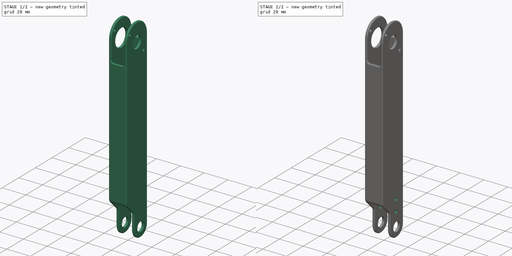
[diagram: build sequence overview — one tinted view per stage of 2, left to right]
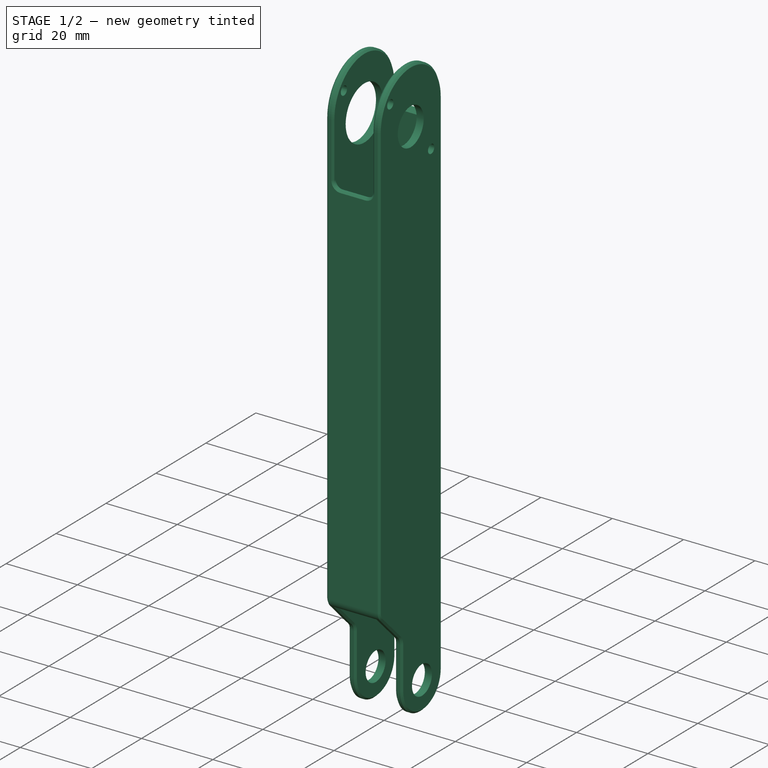
[diagram: stage 1 of 2 — iso view after this stage's code; geometry added in this stage tinted green]
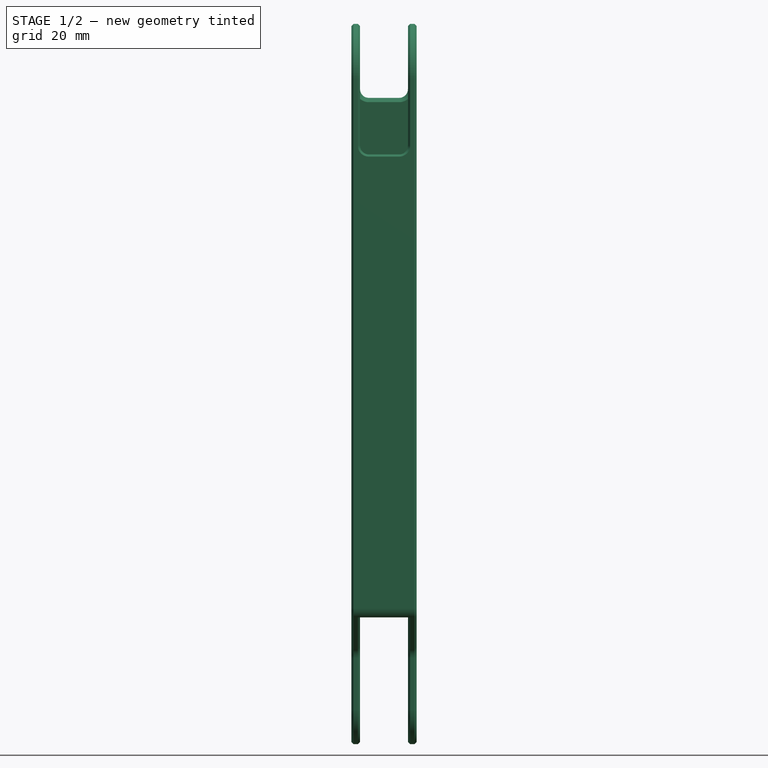
[diagram: stage 1 of 2 — front view after this stage's code; geometry added in this stage tinted green]
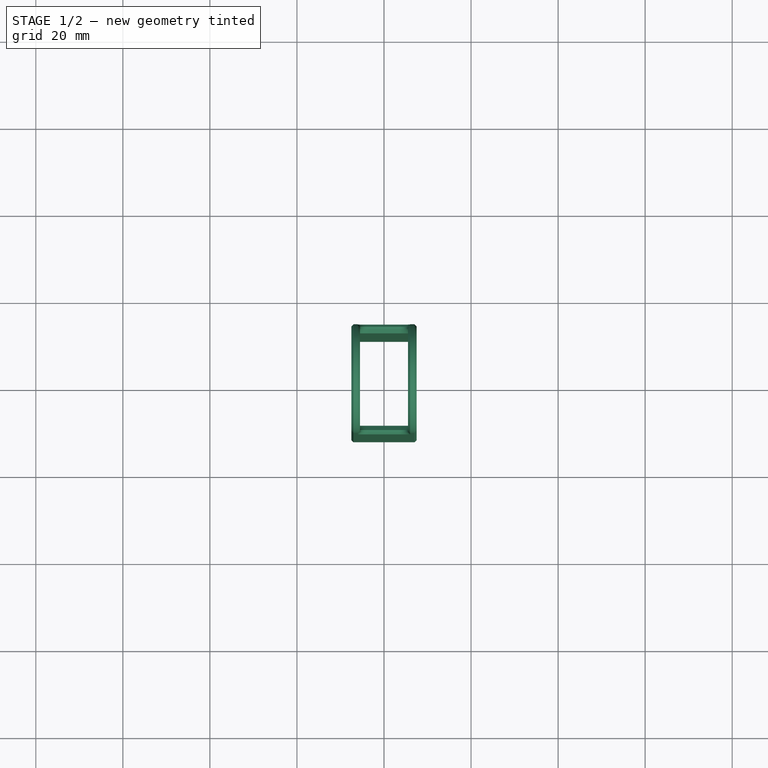
[diagram: stage 1 of 2 — top view after this stage's code; geometry added in this stage tinted green]
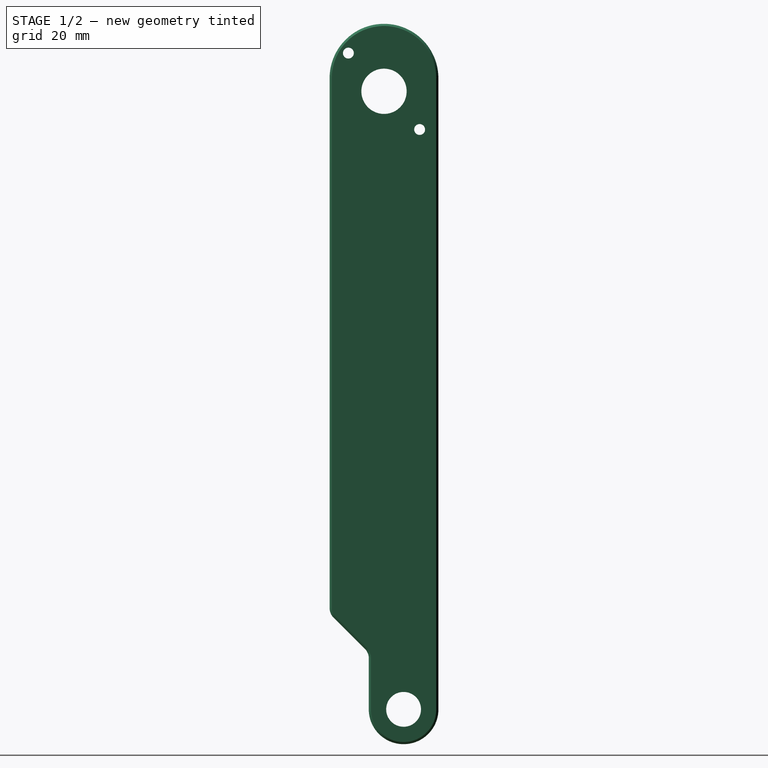
[diagram: stage 1 of 2 — right view after this stage's code; geometry added in this stage tinted green]
FCSTD DOCUMENT  (FreeCAD 0.18R16146 (Git))
Label: ResizedCenterArmSegment
License: All rights reserved
LicenseURL: http://en.wikipedia.org/wiki/All_rights_reserved
objects: Part::Feature×3, Sketcher::SketchObject×2, PartDesign::Pocket×2, PartDesign::FeatureBase×1, PartDesign::Chamfer×1, App::Part×1, PartDesign::Body×1
note: 12 computed .brp shape members not serialized (recipe doc carries the construction recipe); baked Part::Feature solids carry a one-line shape summary decoded from their .brp

FEATURE [Part::Feature] Part__Feature012  label="<unrecoverable-encoding: 9 bytes d7b7b1dbb9d8bdd8b1>"
  Placement = pos=(87.482,183.617,-119.904) rot=(0.506093,-0.698383,0.506093;1.92231rad)
  shape: bbox 62.44 x 159.7 x 15 mm, 100 faces (baked)
FEATURE [PartDesign::FeatureBase] BaseFeature
  BaseFeature = -> Part__Feature012
FEATURE [Sketcher::SketchObject] Sketch
  ExternalGeometry = -> [BaseFeature]
  MapMode = 5
  Placement = pos=(0,12.5,0) rot=(0,0.707107,0.707107;3.14159rad)
  Support = -> [BaseFeature]
  sketch-geometry (4):
    g0: LineSegment StartX=-5.5 StartY=-87 StartZ=0 EndX=-5.5 EndY=-65 EndZ=0
    g1: LineSegment StartX=5.5 StartY=-87 StartZ=0 EndX=5.5 EndY=-65 EndZ=0
    g2: LineSegment StartX=5.5 StartY=-65 StartZ=0 EndX=-5.5 EndY=-65 EndZ=0
    g3: LineSegment StartX=-5.5 StartY=-87 StartZ=0 EndX=5.5 EndY=-87 EndZ=0
  constraints (10):
    c: Coincident(g0,g-3)
    c: Vertical(g0)
    c: Vertical(g1)
    c: Coincident(g2,g1)
    c: Coincident(g2,g0)
    c: Horizontal(g2)
    c: Coincident(g3,g0)
    c: Coincident(g3,g1)
    c: Coincident(g1,g-4)
    c: Distance(g0,g2) = 22
FEATURE [PartDesign::Pocket] Pocket
  BaseFeature = -> BaseFeature
  Length = 3
  Length2 = 100
  Profile = -> Sketch
  Type = 0
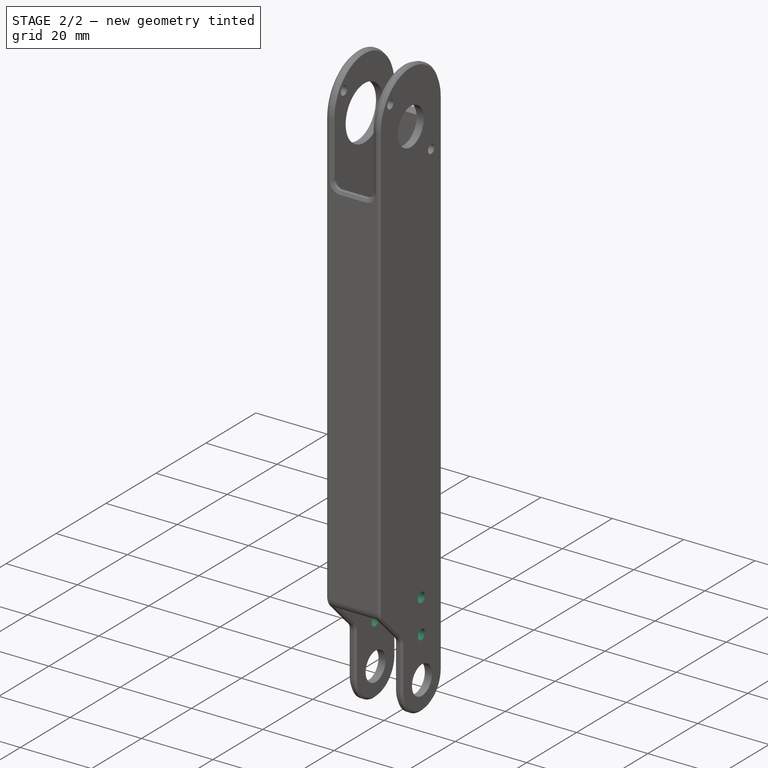
[diagram: stage 2 of 2 — iso view after this stage's code; geometry added in this stage tinted green]
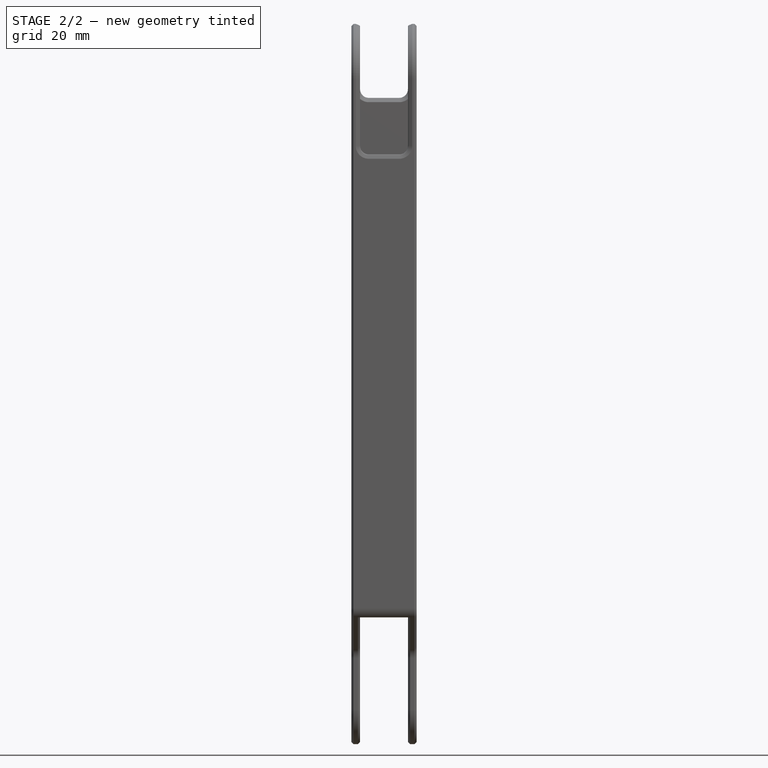
[diagram: stage 2 of 2 — front view after this stage's code; geometry added in this stage tinted green]
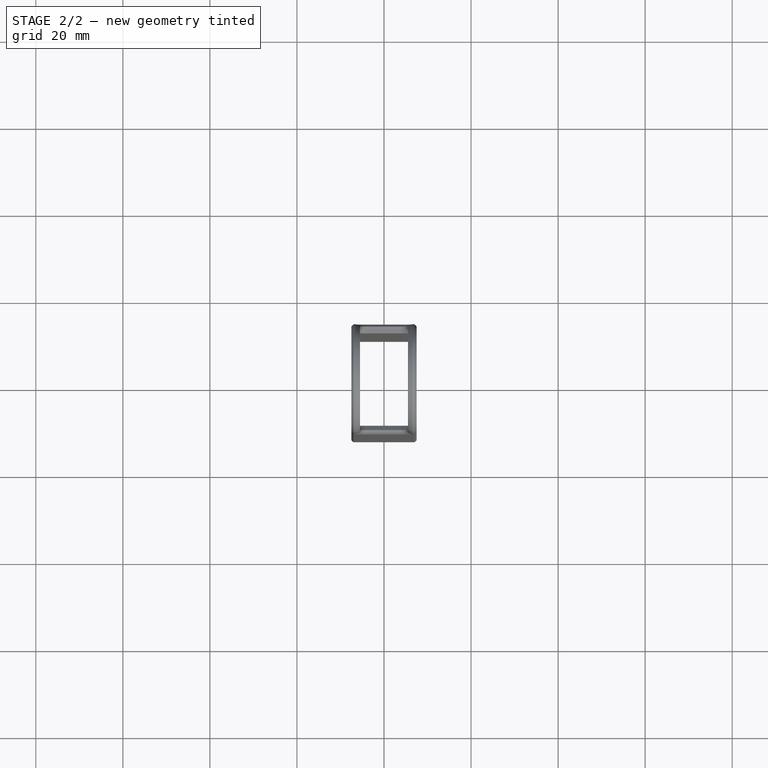
[diagram: stage 2 of 2 — top view after this stage's code; geometry added in this stage tinted green]
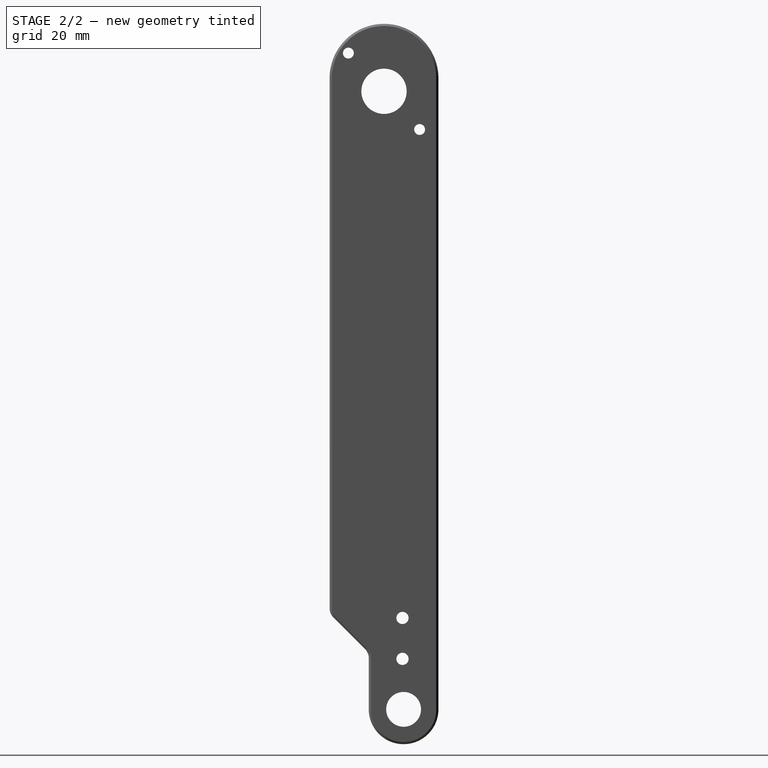
[diagram: stage 2 of 2 — right view after this stage's code; geometry added in this stage tinted green]
FEATURE [PartDesign::Chamfer] Chamfer
  Base = -> Pocket [Edge88,Edge156,Edge157]
  BaseFeature = -> Pocket
  Size = 0.5
FEATURE [Part::Feature] Part__Feature  label="SS_5GL_ACTUATOR"
  Placement = pos=(-11.5,7.7,0) rot=(0,0,1;0rad)
  shape: bbox 15.84 x 5.9 x 4 mm, 8 faces (baked)
FEATURE [Part::Feature] Part__Feature001  label="SS_5GL_BASE"
  shape: bbox 19.8 x 14.87 x 6.4 mm, 43 faces (baked)
FEATURE [App::Part] SS_5GL
  Group = -> [Part__Feature,Part__Feature001]
  Origin = -> Origin001
  Placement = pos=(2.3,4.20445,-80.4471) rot=(0,-1,0;4.71239rad)
FEATURE [Sketcher::SketchObject] Sketch001
  ExternalGeometry = -> [Chamfer]
  MapMode = 5
  Placement = pos=(7.5,0,0) rot=(0.57735,0.57735,0.57735;2.0944rad)
  Support = -> [Chamfer]
  sketch-geometry (3):
    g0: Circle CenterX=4.24645 CenterY=-71 CenterZ=0 NormalX=0 NormalY=0 NormalZ=1 AngleXU=0 Radius=1.4
    g1: Circle CenterX=4.24645 CenterY=-80.4 CenterZ=0 NormalX=0 NormalY=0 NormalZ=1 AngleXU=0 Radius=1.4
    g2: LineSegment [constr] StartX=12 StartY=-87 StartZ=0 EndX=3.07923 EndY=-87 EndZ=0
  constraints (9):
    c: Radius(g0) = 1.4
    c: Radius(g1) = 1.4
    c: Distance(g1,g-3) = 7.9
    c: Distance(g0,g-3) = 7.9
    c: Coincident(g2,g-3)
    c: Horizontal(g2)
    c: Block(g2)
    c: Distance(g1,g2) = 6.6
    c: Distance(g0,g2) = 16
FEATURE [PartDesign::Pocket] Pocket001
  BaseFeature = -> Chamfer
  Length = 5
  Length2 = 100
  Profile = -> Sketch001
  Type = 1
FEATURE [PartDesign::Body] Body
  BaseFeature = -> Part__Feature012
  Group = -> [BaseFeature,Sketch,Pocket,Chamfer,Sketch001,Pocket001]
  Origin = -> Origin
  Tip = -> Pocket001
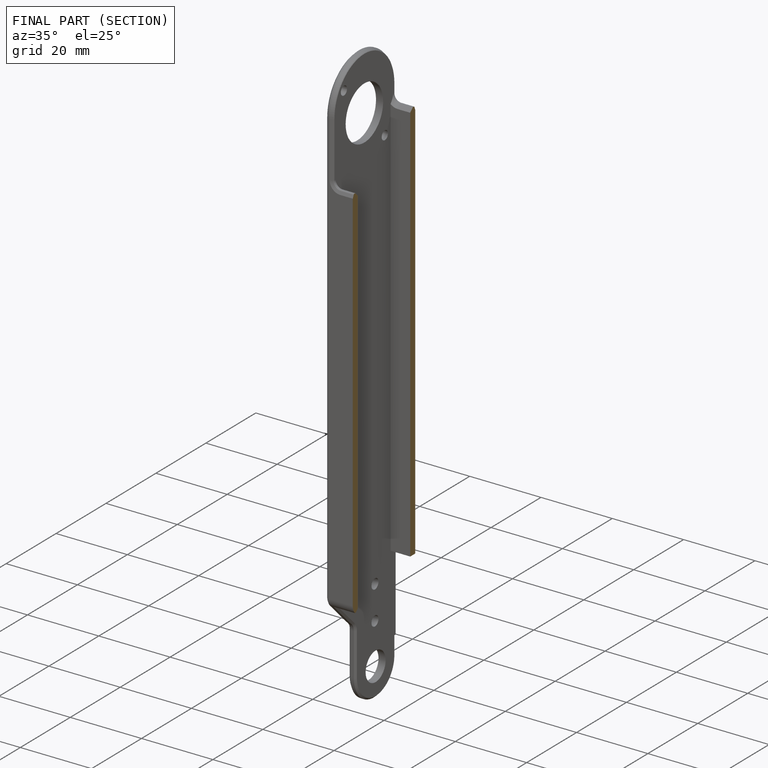
[diagram: finished part — half-section view (interior)]
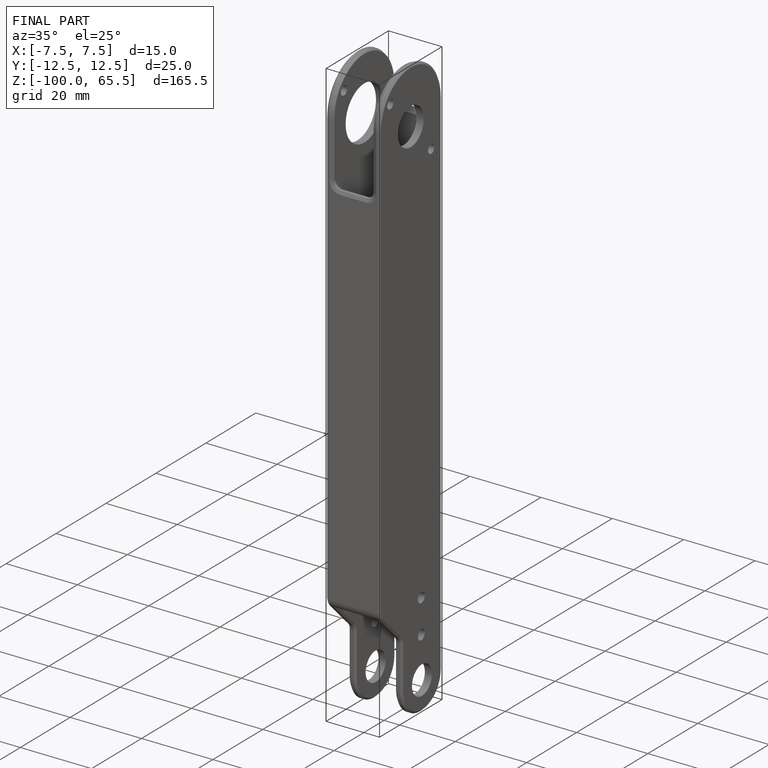
[diagram: finished part — iso view with bounding-box wireframe]
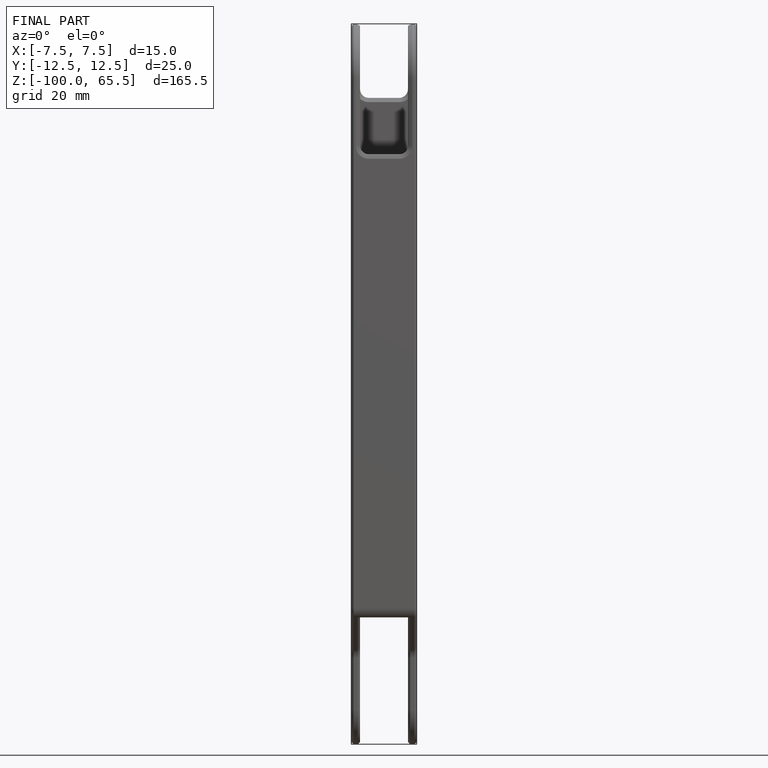
[diagram: finished part — front view with bounding-box wireframe]
